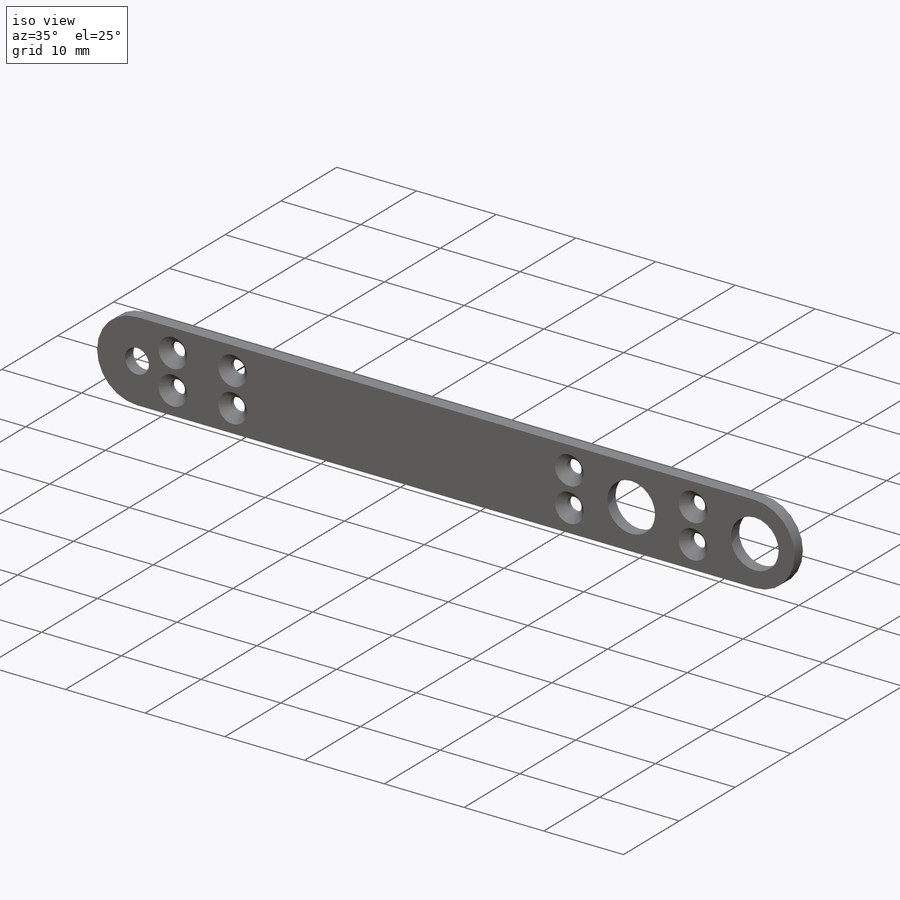
[diagram: iso view]
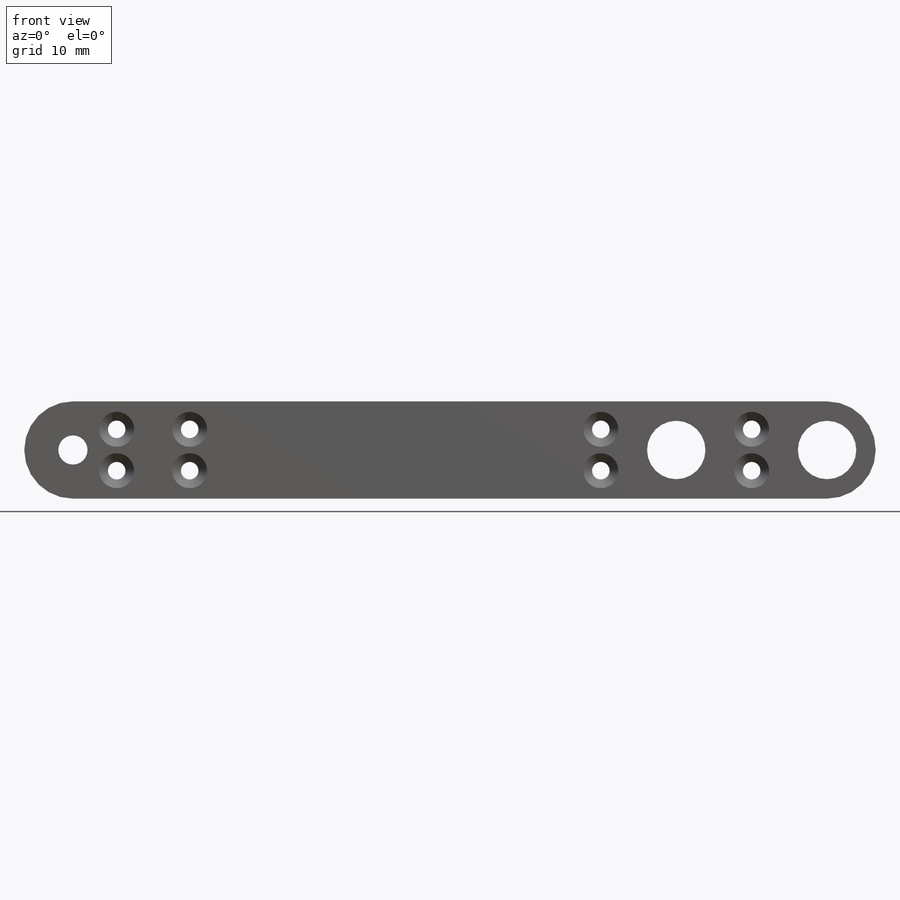
[diagram: front view]
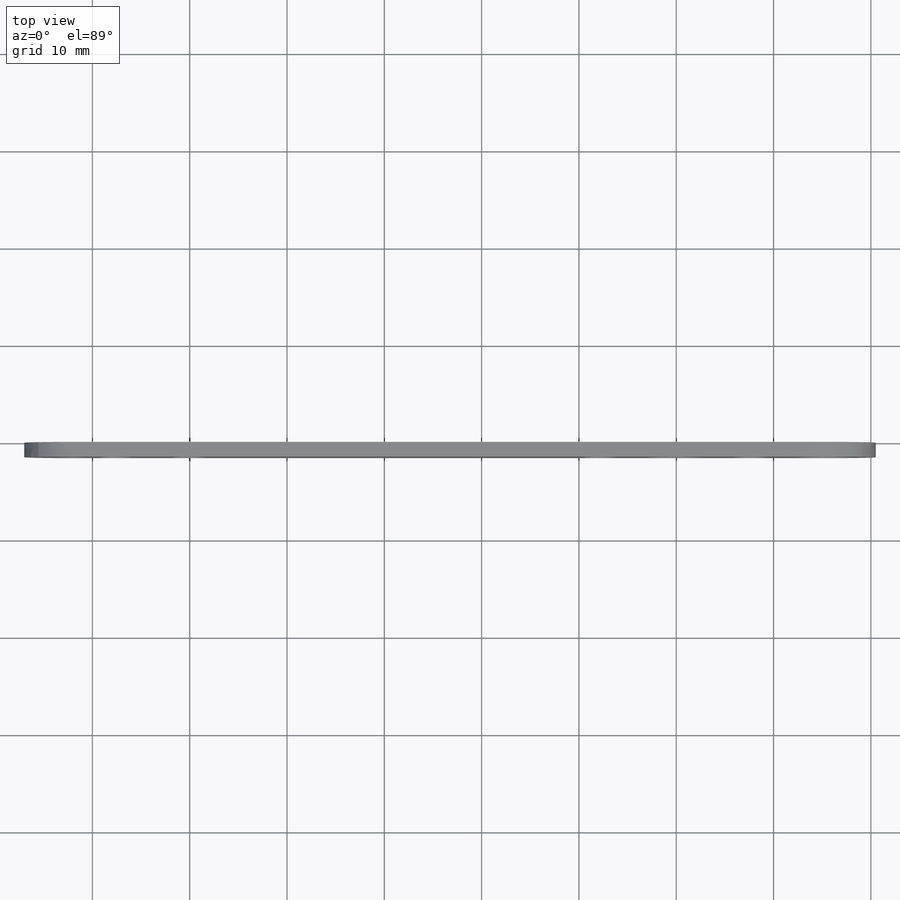
[diagram: top view]
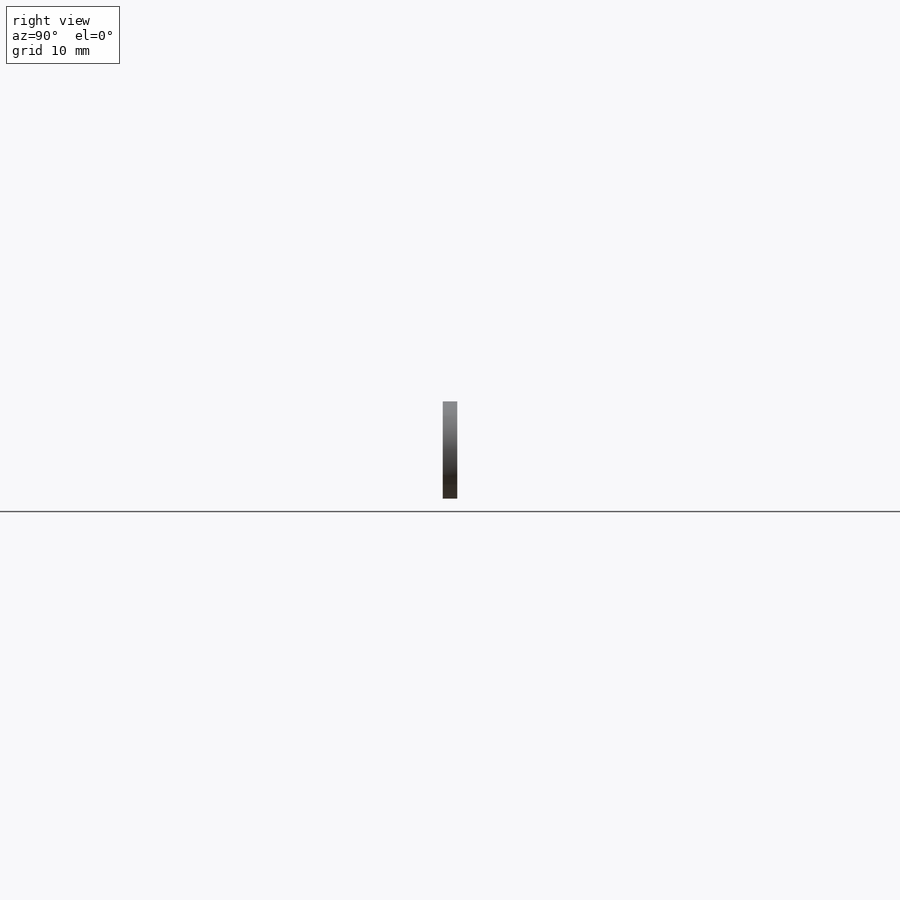
[diagram: right view]
SOLIDWORKS PART (.sldprt)
format: sldprt  version: not decoded by parser v0  size: 218,112 bytes
history: native  units: mm
features: sketch x3, material x1, extrude x1, hole x1, mirror x1 (+12 scaffold rows collapsed)
feature tree (19):
  scaffold x12  (default folders/planes/origin — collapsed)
  material  "Hexcel AS4C (3000 Filaments)"
  sketch  "Sketch1"  dims[c1.D1=6.0mm c1.D2=6.0mm c1.D3=3.0mm c1.D4=3.0mm c1.D5=5.5mm c2.D2=15.5mm c2.D4=62.0mm c2.D6=77.5mm]
  extrude  "Boss-Extrude1"  Depth=1.5mm
  hole  "CSK for M1.6 Countersunk Flat Head Screw1"  Diameter=1.8mm Depth=1.5mm
  sketch  "Sketch3"  dims[c1.D1=3.0mm c1.D2=3.0mm c1.D4=6.0mm c1.D5=6.0mm c2.D1=4.5mm c2.D2=12.0mm c2.D3=5.0mm c2.D4=7.0mm c2.D5=6.0mm]
  sketch  "Sketch2"  dims[hole-wizard template sketch: 54 standard entries collapsed; hole parameters kept: c17.Thru Hole Dia.=1.8mm c17.Thru Hole Depth=1.5mm c17.Near C'Sink Dia.=3.6mm c17.D4=~3.666174mm c17.Near C'Sink Angle=90.0deg]
  mirror  "Mirror1"
decode coverage: 5 of 6 modeling features carry decoded parameters
note: ~ marks probable driven/reference dimensions
note: suppression state not decoded; provenance and decode notes live in map.json
